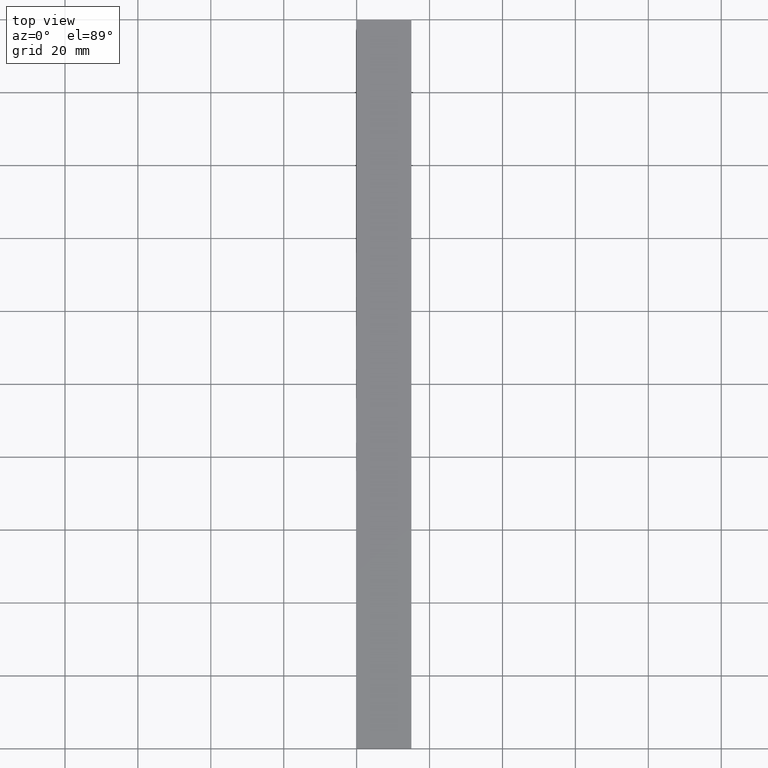
[diagram: clean part render]
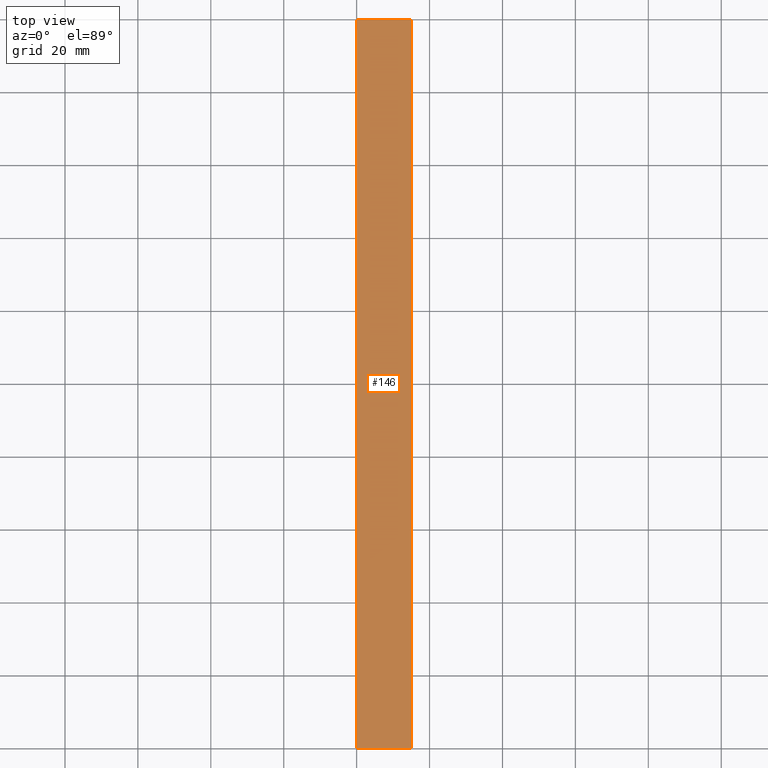
[diagram: same view with one face highlighted and labeled with its STEP entity id]
A machine part, top view. The second image highlights one B-rep face of the part: STEP entity #146.
In plain terms, the highlighted planar face has unit normal (0, 0, -1).
Its self-contained STEP definition (entity closure, byte-faithful):
#5 = EDGE_CURVE ( 'NONE', #24, #76, #110, .T. ) ;
#9 = VECTOR ( 'NONE', #136, 1000.000000000000000 ) ;
#15 = ORIENTED_EDGE ( 'NONE', *, *, #84, .F. ) ;
#24 = VERTEX_POINT ( 'NONE', #83 ) ;
#28 = EDGE_CURVE ( 'NONE', #178, #85, #77, .T. ) ;
#35 = DIRECTION ( 'NONE',  ( 1.000000000000000000, 0.0000000000000000000, 0.0000000000000000000 ) ) ;
#44 = ORIENTED_EDGE ( 'NONE', *, *, #5, .T. ) ;
#51 = LINE ( 'NONE', #68, #173 ) ;
#61 = DIRECTION ( 'NONE',  ( -1.000000000000000000, 0.0000000000000000000, 0.0000000000000000000 ) ) ;
#68 = CARTESIAN_POINT ( 'NONE',  ( 0.0000000000000000000, 0.0000000000000000000, 5.000000000000000000 ) ) ;
#76 = VERTEX_POINT ( 'NONE', #88 ) ;
#77 = LINE ( 'NONE', #152, #164 ) ;
#83 = CARTESIAN_POINT ( 'NONE',  ( 0.0000000000000000000, 200.0000000000000000, 5.000000000000000000 ) ) ;
#84 = EDGE_CURVE ( 'NONE', #24, #178, #142, .T. ) ;
#85 = VERTEX_POINT ( 'NONE', #97 ) ;
#88 = CARTESIAN_POINT ( 'NONE',  ( 0.0000000000000000000, 0.0000000000000000000, 5.000000000000000000 ) ) ;
#97 = CARTESIAN_POINT ( 'NONE',  ( 15.00000000000000000, 0.0000000000000000000, 5.000000000000000000 ) ) ;
#106 = CARTESIAN_POINT ( 'NONE',  ( 0.0000000000000000000, 200.0000000000000000, 5.000000000000000000 ) ) ;
#109 = ORIENTED_EDGE ( 'NONE', *, *, #28, .F. ) ;
#110 = LINE ( 'NONE', #121, #9 ) ;
#111 = ORIENTED_EDGE ( 'NONE', *, *, #141, .T. ) ;
#121 = CARTESIAN_POINT ( 'NONE',  ( 0.0000000000000000000, 1000.000000000000000, 5.000000000000000000 ) ) ;
#132 = DIRECTION ( 'NONE',  ( 1.000000000000000000, 0.0000000000000000000, 0.0000000000000000000 ) ) ;
#136 = DIRECTION ( 'NONE',  ( 0.0000000000000000000, -1.000000000000000000, 0.0000000000000000000 ) ) ;
#141 = EDGE_CURVE ( 'NONE', #76, #85, #51, .T. ) ;
#142 = LINE ( 'NONE', #106, #168 ) ;
#144 = PLANE ( 'NONE',  #165 ) ;
#146 = ADVANCED_FACE ( 'NONE', ( #221 ), #144, .F. ) ;
#152 = CARTESIAN_POINT ( 'NONE',  ( 15.00000000000000000, 1000.000000000000000, 5.000000000000000000 ) ) ;
#157 = EDGE_LOOP ( 'NONE', ( #111, #109, #15, #44 ) ) ;
#164 = VECTOR ( 'NONE', #182, 1000.000000000000000 ) ;
#165 = AXIS2_PLACEMENT_3D ( 'NONE', #238, #186, #61 ) ;
#168 = VECTOR ( 'NONE', #132, 1000.000000000000000 ) ;
#171 = CARTESIAN_POINT ( 'NONE',  ( 15.00000000000000000, 200.0000000000000000, 5.000000000000000000 ) ) ;
#173 = VECTOR ( 'NONE', #35, 1000.000000000000000 ) ;
#178 = VERTEX_POINT ( 'NONE', #171 ) ;
#182 = DIRECTION ( 'NONE',  ( 0.0000000000000000000, -1.000000000000000000, 0.0000000000000000000 ) ) ;
#186 = DIRECTION ( 'NONE',  ( 0.0000000000000000000, 0.0000000000000000000, -1.000000000000000000 ) ) ;
#221 = FACE_OUTER_BOUND ( 'NONE', #157, .T. ) ;
#238 = CARTESIAN_POINT ( 'NONE',  ( 0.0000000000000000000, 1000.000000000000000, 5.000000000000000000 ) ) ;